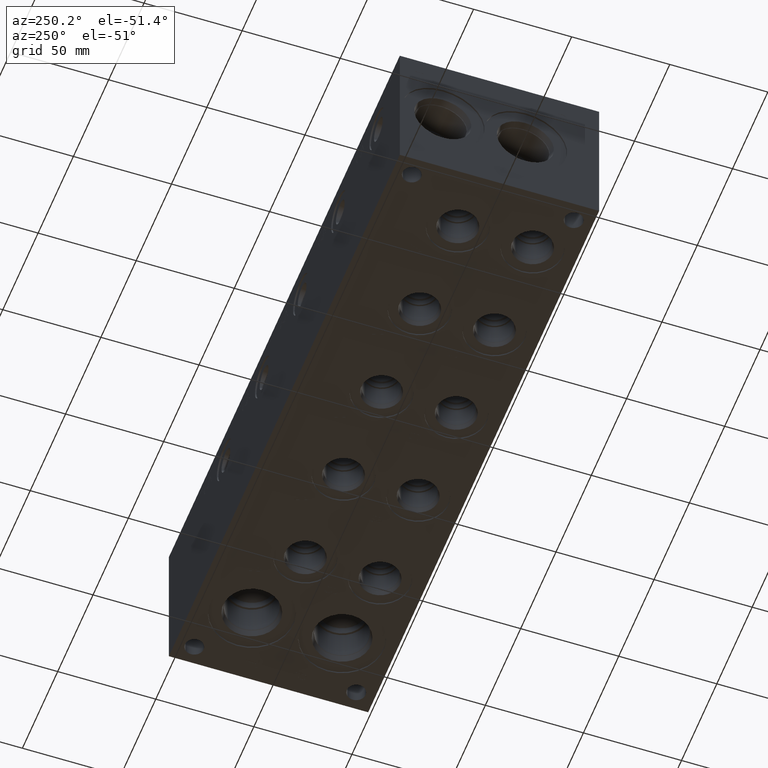
[diagram: clean part render]
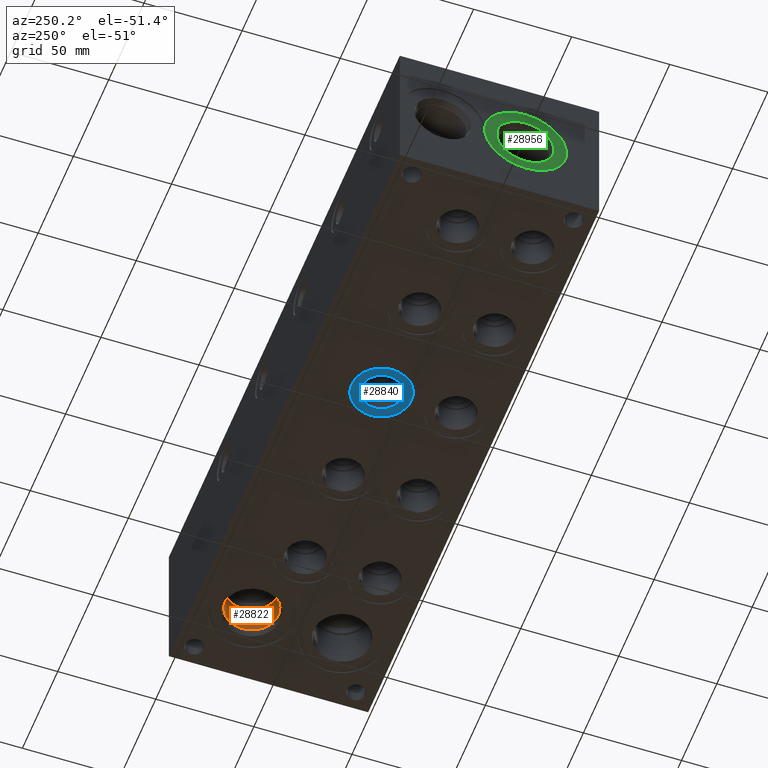
[diagram: same view with three faces highlighted in distinct colors, each labeled with its STEP entity id]
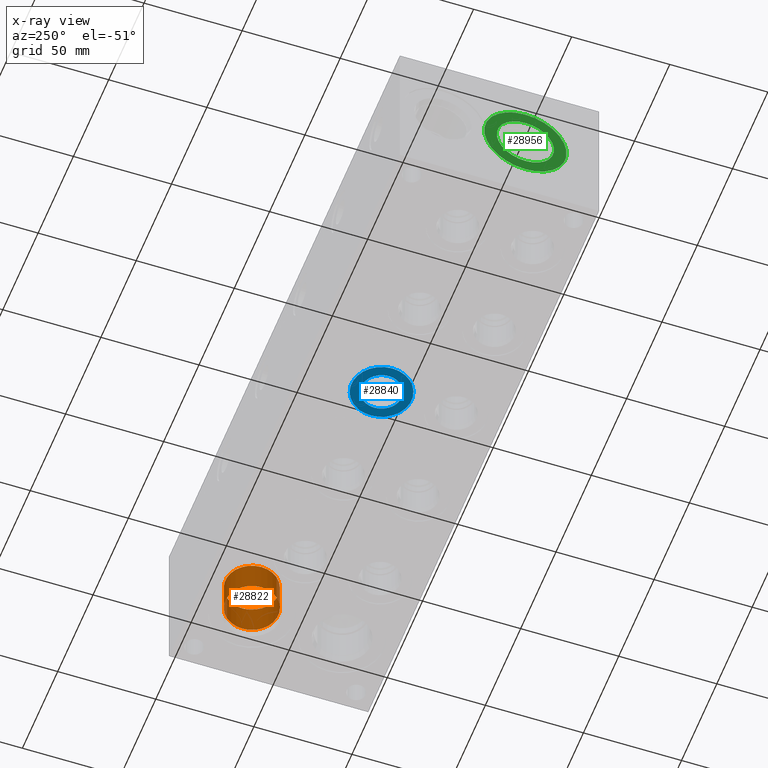
[diagram: x-ray of the same camera — body ghosted, the three highlighted faces saturated]
A machine part, auxiliary view with three faces highlighted in distinct colors.
The next image is the same camera in x-ray (body ghosted, the three faces saturated) — at least one of them is partly hidden behind the body in this view.
Their STEP definitions:

[orange] entity #28822 — the highlighted cylindrical surface (bore or boss wall) has radius 13.495 mm, axis along (0, 0, -1).
#101=CYLINDRICAL_SURFACE('',#30317,13.495);
#766=CIRCLE('',#30299,13.495);
#775=CIRCLE('',#30314,13.495);
#776=CIRCLE('',#30315,13.495);
#3367=FACE_OUTER_BOUND('',#5047,.T.);
#5047=EDGE_LOOP('',(#24816,#24817,#24818,#24819,#24820));
#7592=LINE('',#50002,#10000);
#10000=VECTOR('',#35605,13.495);
#13501=VERTEX_POINT('',#49964);
#13512=VERTEX_POINT('',#49995);
#13513=VERTEX_POINT('',#49996);
#17395=EDGE_CURVE('',#13501,#13501,#766,.T.);
#17408=EDGE_CURVE('',#13512,#13513,#775,.T.);
#17409=EDGE_CURVE('',#13513,#13512,#776,.T.);
#17411=EDGE_CURVE('',#13501,#13513,#7592,.T.);
#24816=ORIENTED_EDGE('',*,*,#17395,.T.);
#24817=ORIENTED_EDGE('',*,*,#17411,.T.);
#24818=ORIENTED_EDGE('',*,*,#17408,.F.);
#24819=ORIENTED_EDGE('',*,*,#17409,.F.);
#24820=ORIENTED_EDGE('',*,*,#17411,.F.);
#28822=ADVANCED_FACE('',(#3367),#101,.F.);
#30299=AXIS2_PLACEMENT_3D('',#49966,#35563,#35564);
#30314=AXIS2_PLACEMENT_3D('',#49997,#35597,#35598);
#30315=AXIS2_PLACEMENT_3D('',#49998,#35599,#35600);
#30317=AXIS2_PLACEMENT_3D('',#50001,#35603,#35604);
#35563=DIRECTION('center_axis',(0.,0.,-1.));
#35564=DIRECTION('ref_axis',(1.,0.,0.));
#35597=DIRECTION('center_axis',(0.,0.,-1.));
#35598=DIRECTION('ref_axis',(1.,0.,0.));
#35599=DIRECTION('center_axis',(0.,0.,-1.));
#35600=DIRECTION('ref_axis',(1.,0.,0.));
#35603=DIRECTION('center_axis',(0.,0.,-1.));
#35604=DIRECTION('ref_axis',(1.,0.,0.));
#35605=DIRECTION('',(0.,0.,1.));
#49964=CARTESIAN_POINT('',(275.43,73.025,4.28500000000001));
#49966=CARTESIAN_POINT('Origin',(288.925,73.025,4.28500000000001));
#49995=CARTESIAN_POINT('',(302.42,73.025,19.8374));
#49996=CARTESIAN_POINT('',(275.43,73.025,19.8374));
#49997=CARTESIAN_POINT('Origin',(288.925,73.025,19.8374));
#49998=CARTESIAN_POINT('Origin',(288.925,73.025,19.8374));
#50001=CARTESIAN_POINT('Origin',(288.925,73.025,9.9187));
#50002=CARTESIAN_POINT('',(275.43,73.025,9.9187));

[blue] entity #28840 — the highlighted planar face has unit normal (0, 0, 1).
#804=CIRCLE('',#30361,15.3162);
#805=CIRCLE('',#30362,15.3162);
#806=CIRCLE('',#30364,10.2997);
#807=CIRCLE('',#30365,10.2997);
#1290=FACE_BOUND('',#5069,.T.);
#2046=PLANE('',#30363);
#3385=FACE_OUTER_BOUND('',#5068,.T.);
#5068=EDGE_LOOP('',(#24913,#24914));
#5069=EDGE_LOOP('',(#24915,#24916));
#13541=VERTEX_POINT('',#50085);
#13542=VERTEX_POINT('',#50087);
#13543=VERTEX_POINT('',#50091);
#13544=VERTEX_POINT('',#50092);
#17452=EDGE_CURVE('',#13541,#13542,#804,.T.);
#17453=EDGE_CURVE('',#13542,#13541,#805,.T.);
#17454=EDGE_CURVE('',#13543,#13544,#806,.T.);
#17455=EDGE_CURVE('',#13544,#13543,#807,.T.);
#24913=ORIENTED_EDGE('',*,*,#17453,.F.);
#24914=ORIENTED_EDGE('',*,*,#17452,.F.);
#24915=ORIENTED_EDGE('',*,*,#17454,.T.);
#24916=ORIENTED_EDGE('',*,*,#17455,.T.);
#28840=ADVANCED_FACE('',(#3385,#1290),#2046,.F.);
#30361=AXIS2_PLACEMENT_3D('',#50088,#35706,#35707);
#30362=AXIS2_PLACEMENT_3D('',#50089,#35708,#35709);
#30363=AXIS2_PLACEMENT_3D('',#50090,#35710,#35711);
#30364=AXIS2_PLACEMENT_3D('',#50093,#35712,#35713);
#30365=AXIS2_PLACEMENT_3D('',#50094,#35714,#35715);
#35706=DIRECTION('center_axis',(0.,0.,1.));
#35707=DIRECTION('ref_axis',(1.,0.,0.));
#35708=DIRECTION('center_axis',(0.,0.,1.));
#35709=DIRECTION('ref_axis',(1.,0.,0.));
#35710=DIRECTION('center_axis',(0.,0.,1.));
#35711=DIRECTION('ref_axis',(1.,0.,0.));
#35712=DIRECTION('center_axis',(0.,0.,1.));
#35713=DIRECTION('ref_axis',(1.,0.,0.));
#35714=DIRECTION('center_axis',(0.,0.,1.));
#35715=DIRECTION('ref_axis',(1.,0.,0.));
#50085=CARTESIAN_POINT('',(125.1712,60.325,0.7874));
#50087=CARTESIAN_POINT('',(155.8036,60.325,0.7874));
#50088=CARTESIAN_POINT('Origin',(140.4874,60.325,0.7874));
#50089=CARTESIAN_POINT('Origin',(140.4874,60.325,0.7874));
#50090=CARTESIAN_POINT('Origin',(150.7871,60.325,0.7874));
#50091=CARTESIAN_POINT('',(150.7871,60.325,0.7874));
#50092=CARTESIAN_POINT('',(130.1877,60.325,0.787399999999997));
#50093=CARTESIAN_POINT('Origin',(140.4874,60.325,0.7874));
#50094=CARTESIAN_POINT('Origin',(140.4874,60.325,0.7874));

[green] entity #28956 — the highlighted planar face has unit normal (1, 0, 0).
#976=CIRCLE('',#30649,21.0185);
#977=CIRCLE('',#30650,21.0185);
#978=CIRCLE('',#30652,14.5923);
#979=CIRCLE('',#30653,14.5923);
#1312=FACE_BOUND('',#5207,.T.);
#2068=PLANE('',#30651);
#3501=FACE_OUTER_BOUND('',#5206,.T.);
#5206=EDGE_LOOP('',(#25471,#25472));
#5207=EDGE_LOOP('',(#25473,#25474));
#13727=VERTEX_POINT('',#50653);
#13728=VERTEX_POINT('',#50655);
#13729=VERTEX_POINT('',#50659);
#13730=VERTEX_POINT('',#50660);
#17718=EDGE_CURVE('',#13727,#13728,#976,.T.);
#17719=EDGE_CURVE('',#13728,#13727,#977,.T.);
#17720=EDGE_CURVE('',#13729,#13730,#978,.T.);
#17721=EDGE_CURVE('',#13730,#13729,#979,.T.);
#25471=ORIENTED_EDGE('',*,*,#17719,.F.);
#25472=ORIENTED_EDGE('',*,*,#17718,.F.);
#25473=ORIENTED_EDGE('',*,*,#17720,.T.);
#25474=ORIENTED_EDGE('',*,*,#17721,.T.);
#28956=ADVANCED_FACE('',(#3501,#1312),#2068,.F.);
#30649=AXIS2_PLACEMENT_3D('',#50656,#36376,#36377);
#30650=AXIS2_PLACEMENT_3D('',#50657,#36378,#36379);
#30651=AXIS2_PLACEMENT_3D('',#50658,#36380,#36381);
#30652=AXIS2_PLACEMENT_3D('',#50661,#36382,#36383);
#30653=AXIS2_PLACEMENT_3D('',#50662,#36384,#36385);
#36376=DIRECTION('center_axis',(1.,0.,0.));
#36377=DIRECTION('ref_axis',(0.,0.,-1.));
#36378=DIRECTION('center_axis',(1.,0.,0.));
#36379=DIRECTION('ref_axis',(0.,0.,-1.));
#36380=DIRECTION('center_axis',(1.,0.,0.));
#36381=DIRECTION('ref_axis',(0.,0.,-1.));
#36382=DIRECTION('center_axis',(1.,0.,0.));
#36383=DIRECTION('ref_axis',(0.,0.,-1.));
#36384=DIRECTION('center_axis',(1.,0.,0.));
#36385=DIRECTION('ref_axis',(0.,0.,-1.));
#50653=CARTESIAN_POINT('',(0.7874,37.3126,17.0815));
#50655=CARTESIAN_POINT('',(0.7874,37.3126,59.1185));
#50656=CARTESIAN_POINT('Origin',(0.7874,37.3126,38.1));
#50657=CARTESIAN_POINT('Origin',(0.7874,37.3126,38.1));
#50658=CARTESIAN_POINT('Origin',(0.7874,37.3126,52.6923));
#50659=CARTESIAN_POINT('',(0.7874,37.3126,52.6923));
#50660=CARTESIAN_POINT('',(0.787399999999999,37.3126,23.5077));
#50661=CARTESIAN_POINT('Origin',(0.7874,37.3126,38.1));
#50662=CARTESIAN_POINT('Origin',(0.7874,37.3126,38.1));